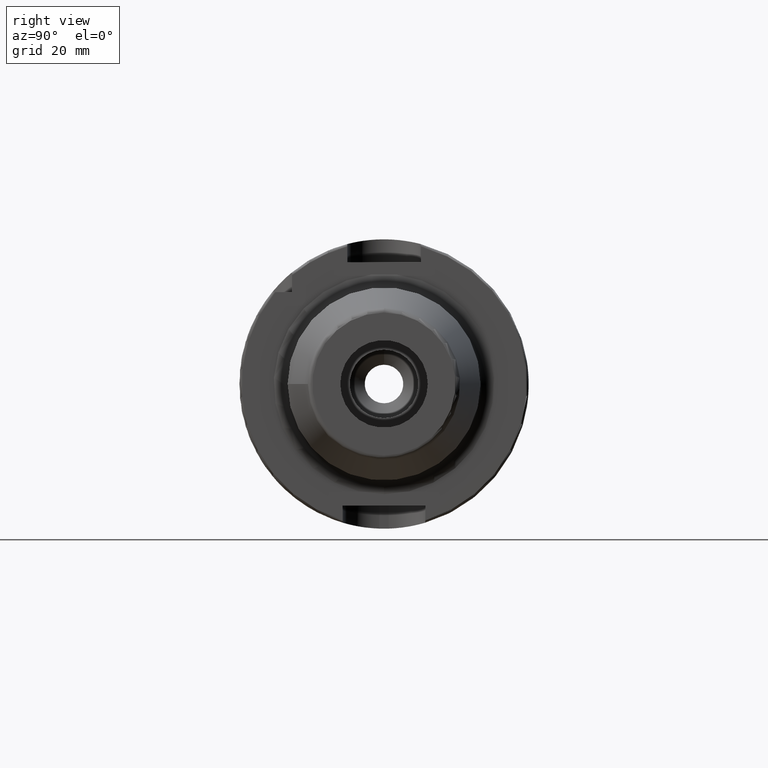
[diagram: clean part render]
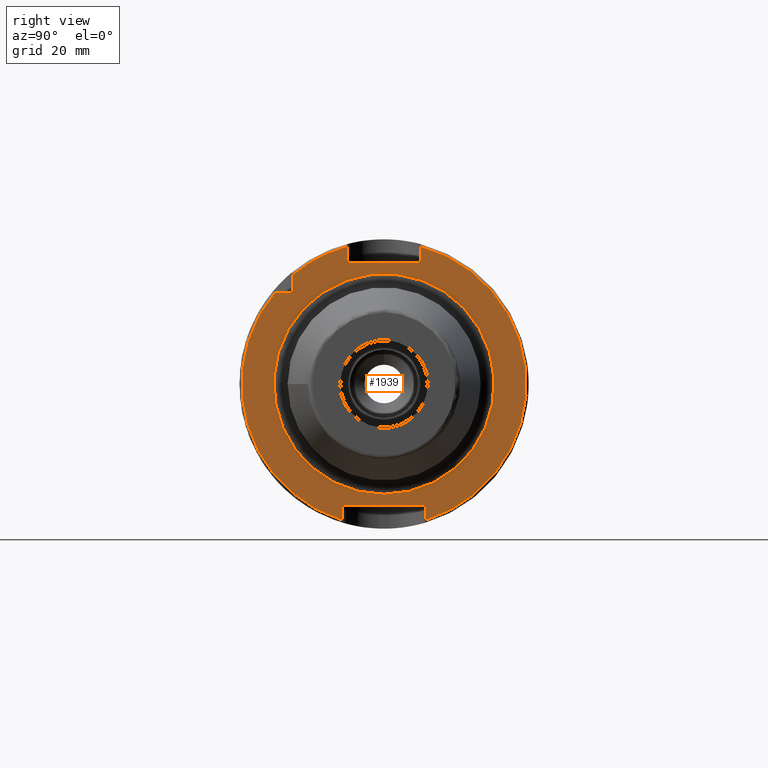
[diagram: same view with one face highlighted and labeled with its STEP entity id]
A machine part, right view. The second image highlights one B-rep face of the part: STEP entity #1939.
In plain terms, the highlighted planar face has unit normal (1, 0, 0).
Its self-contained STEP definition (entity closure, byte-faithful):
#98=FACE_BOUND('',#332,.T.);
#109=PLANE('',#2092);
#214=FACE_OUTER_BOUND('',#331,.T.);
#331=EDGE_LOOP('',(#1328,#1329,#1330,#1331,#1332,#1333,#1334,#1335,#1336,
#1337,#1338));
#332=EDGE_LOOP('',(#1339));
#454=LINE('',#2958,#560);
#455=LINE('',#2962,#561);
#456=LINE('',#2964,#562);
#457=LINE('',#2966,#563);
#458=LINE('',#2970,#564);
#459=LINE('',#2972,#565);
#460=LINE('',#2974,#566);
#461=LINE('',#2977,#567);
#560=VECTOR('',#2367,10.);
#561=VECTOR('',#2370,10.);
#562=VECTOR('',#2371,10.);
#563=VECTOR('',#2372,10.);
#564=VECTOR('',#2375,10.);
#565=VECTOR('',#2376,10.);
#566=VECTOR('',#2377,10.);
#567=VECTOR('',#2380,10.);
#674=CIRCLE('',#2089,24.);
#676=CIRCLE('',#2093,31.);
#677=CIRCLE('',#2094,31.);
#678=CIRCLE('',#2095,31.);
#797=VERTEX_POINT('',#2949);
#798=VERTEX_POINT('',#2956);
#799=VERTEX_POINT('',#2957);
#800=VERTEX_POINT('',#2959);
#801=VERTEX_POINT('',#2961);
#802=VERTEX_POINT('',#2963);
#803=VERTEX_POINT('',#2965);
#804=VERTEX_POINT('',#2967);
#805=VERTEX_POINT('',#2969);
#806=VERTEX_POINT('',#2971);
#807=VERTEX_POINT('',#2973);
#808=VERTEX_POINT('',#2975);
#1002=EDGE_CURVE('',#797,#797,#674,.T.);
#1005=EDGE_CURVE('',#798,#799,#454,.T.);
#1006=EDGE_CURVE('',#799,#800,#676,.T.);
#1007=EDGE_CURVE('',#800,#801,#455,.T.);
#1008=EDGE_CURVE('',#801,#802,#456,.T.);
#1009=EDGE_CURVE('',#802,#803,#457,.T.);
#1010=EDGE_CURVE('',#803,#804,#677,.T.);
#1011=EDGE_CURVE('',#804,#805,#458,.T.);
#1012=EDGE_CURVE('',#805,#806,#459,.T.);
#1013=EDGE_CURVE('',#806,#807,#460,.T.);
#1014=EDGE_CURVE('',#807,#808,#678,.T.);
#1015=EDGE_CURVE('',#808,#798,#461,.T.);
#1328=ORIENTED_EDGE('',*,*,#1005,.T.);
#1329=ORIENTED_EDGE('',*,*,#1006,.T.);
#1330=ORIENTED_EDGE('',*,*,#1007,.T.);
#1331=ORIENTED_EDGE('',*,*,#1008,.T.);
#1332=ORIENTED_EDGE('',*,*,#1009,.T.);
#1333=ORIENTED_EDGE('',*,*,#1010,.T.);
#1334=ORIENTED_EDGE('',*,*,#1011,.T.);
#1335=ORIENTED_EDGE('',*,*,#1012,.T.);
#1336=ORIENTED_EDGE('',*,*,#1013,.T.);
#1337=ORIENTED_EDGE('',*,*,#1014,.T.);
#1338=ORIENTED_EDGE('',*,*,#1015,.T.);
#1339=ORIENTED_EDGE('',*,*,#1002,.F.);
#1939=ADVANCED_FACE('',(#214,#98),#109,.T.);
#2089=AXIS2_PLACEMENT_3D('',#2951,#2358,#2359);
#2092=AXIS2_PLACEMENT_3D('',#2955,#2365,#2366);
#2093=AXIS2_PLACEMENT_3D('',#2960,#2368,#2369);
#2094=AXIS2_PLACEMENT_3D('',#2968,#2373,#2374);
#2095=AXIS2_PLACEMENT_3D('',#2976,#2378,#2379);
#2358=DIRECTION('center_axis',(1.,0.,0.));
#2359=DIRECTION('ref_axis',(0.,-1.,-1.22464679914735E-16));
#2365=DIRECTION('center_axis',(1.,0.,0.));
#2366=DIRECTION('ref_axis',(0.,0.,-1.));
#2367=DIRECTION('',(0.,-1.,0.));
#2368=DIRECTION('center_axis',(1.,0.,0.));
#2369=DIRECTION('ref_axis',(0.,0.,-1.));
#2370=DIRECTION('',(0.,0.,1.));
#2371=DIRECTION('',(0.,1.,0.));
#2372=DIRECTION('',(0.,0.,-1.));
#2373=DIRECTION('center_axis',(1.,0.,0.));
#2374=DIRECTION('ref_axis',(0.,0.,-1.));
#2375=DIRECTION('',(0.,0.,-1.));
#2376=DIRECTION('',(0.,-1.,0.));
#2377=DIRECTION('',(0.,0.,1.));
#2378=DIRECTION('center_axis',(1.,0.,0.));
#2379=DIRECTION('ref_axis',(0.,0.,-1.));
#2380=DIRECTION('',(0.,0.,-1.));
#2949=CARTESIAN_POINT('',(26.,-2.93915231795365E-15,-24.));
#2951=CARTESIAN_POINT('Origin',(26.,0.,0.));
#2955=CARTESIAN_POINT('Origin',(26.,0.,0.));
#2956=CARTESIAN_POINT('',(26.,-20.,20.));
#2957=CARTESIAN_POINT('',(26.,-23.685438564654,20.));
#2958=CARTESIAN_POINT('',(26.,-12.,20.));
#2959=CARTESIAN_POINT('',(26.,-9.,-29.6647939483827));
#2960=CARTESIAN_POINT('Origin',(26.,0.,0.));
#2961=CARTESIAN_POINT('',(26.,-9.,-26.5));
#2962=CARTESIAN_POINT('',(26.,-9.,-13.25));
#2963=CARTESIAN_POINT('',(26.,9.,-26.5));
#2964=CARTESIAN_POINT('',(26.,1.94289029309402E-15,-26.5));
#2965=CARTESIAN_POINT('',(26.,9.,-29.6647939483827));
#2966=CARTESIAN_POINT('',(26.,9.,-13.25));
#2967=CARTESIAN_POINT('',(26.,8.,29.9499582637439));
#2968=CARTESIAN_POINT('Origin',(26.,0.,0.));
#2969=CARTESIAN_POINT('',(26.,8.,26.5));
#2970=CARTESIAN_POINT('',(26.,8.,13.25));
#2971=CARTESIAN_POINT('',(26.,-8.,26.5));
#2972=CARTESIAN_POINT('',(26.,5.55111512312578E-16,26.5));
#2973=CARTESIAN_POINT('',(26.,-8.,29.9499582637439));
#2974=CARTESIAN_POINT('',(26.,-8.,13.25));
#2975=CARTESIAN_POINT('',(26.,-20.,23.685438564654));
#2976=CARTESIAN_POINT('Origin',(26.,0.,0.));
#2977=CARTESIAN_POINT('',(26.,-20.,10.));